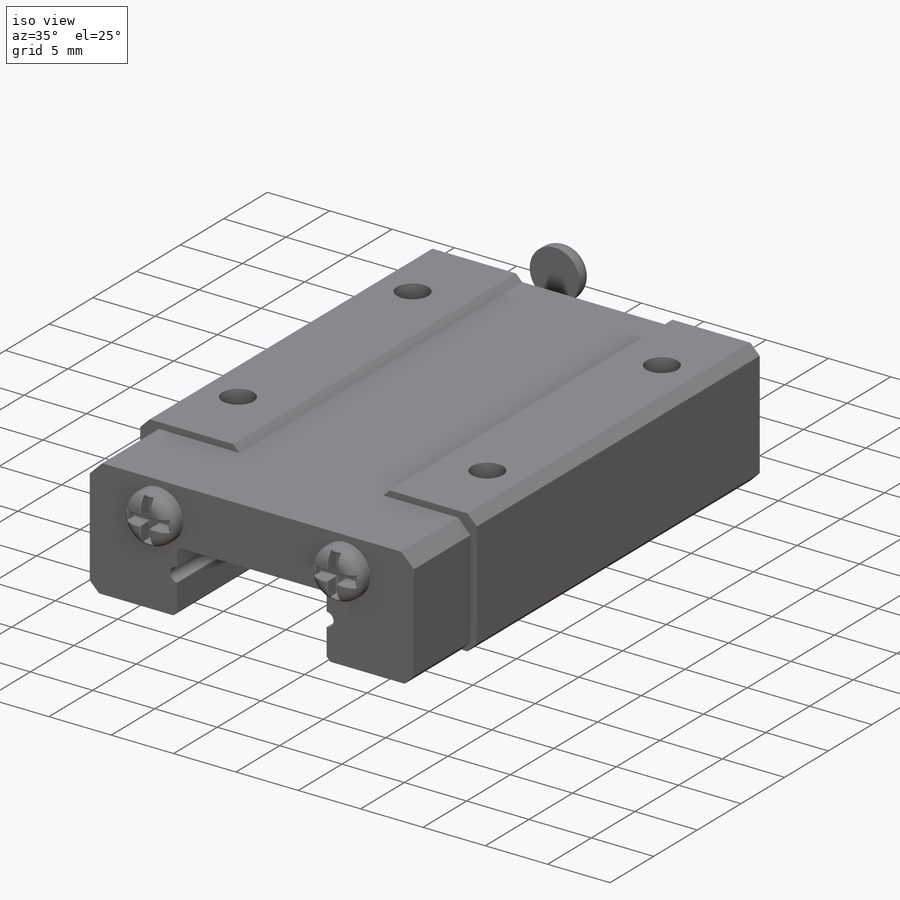
[diagram: iso view]
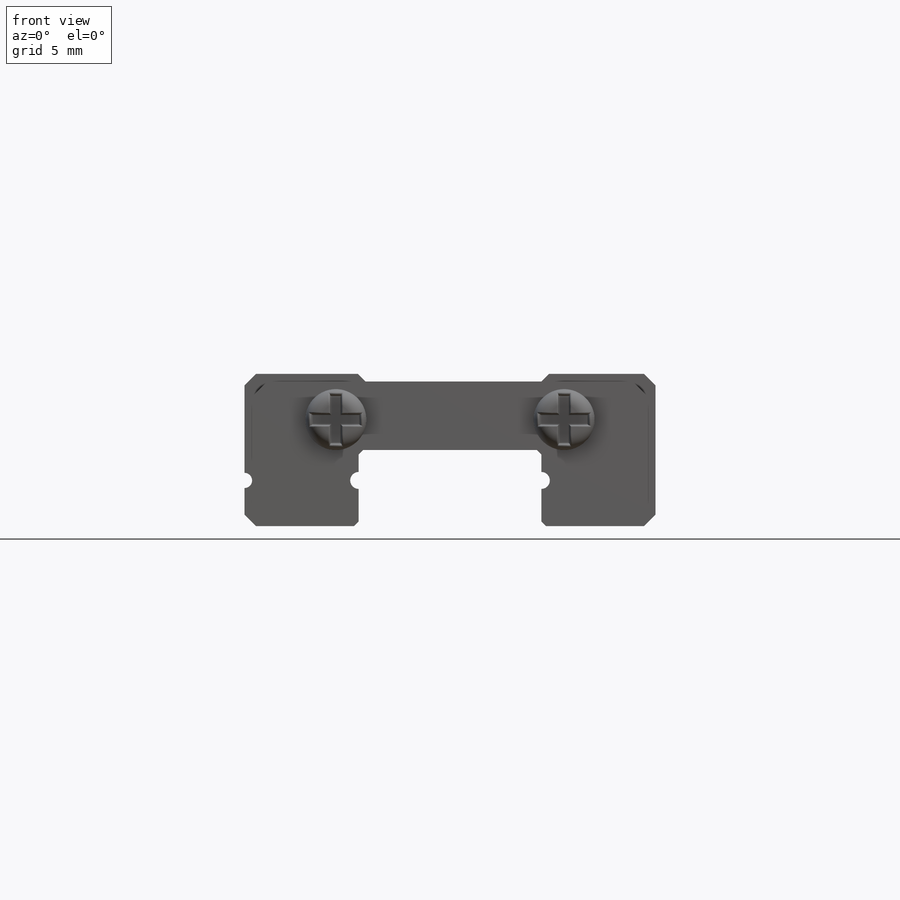
[diagram: front view]
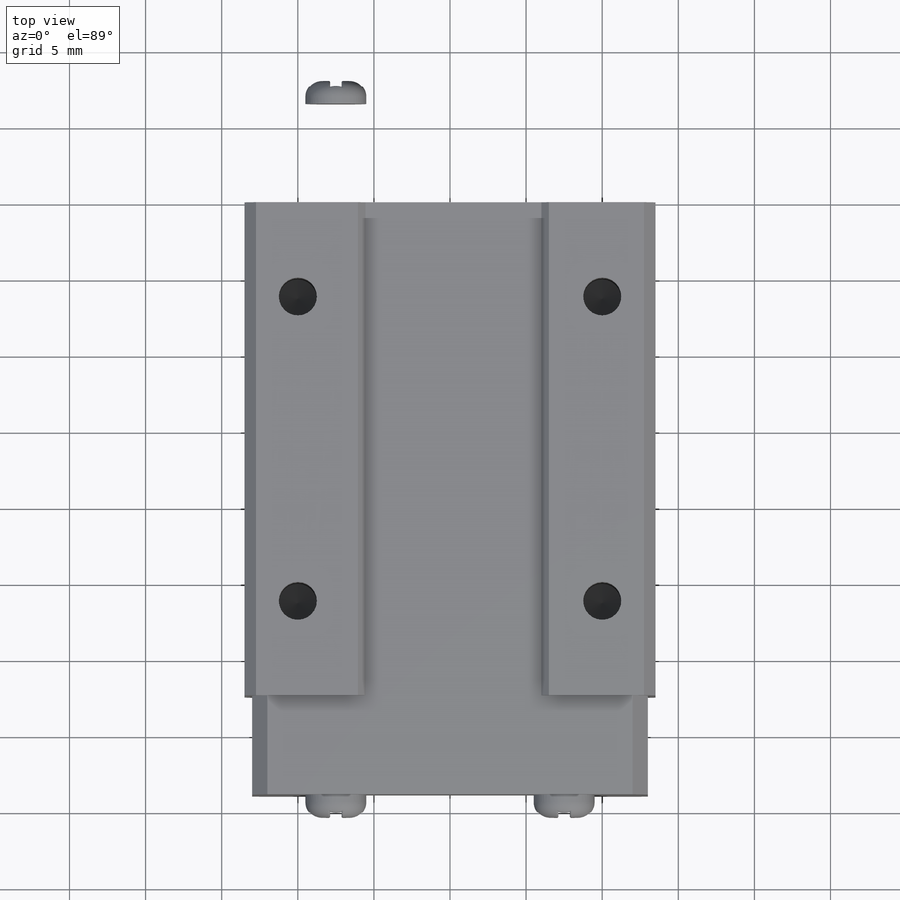
[diagram: top view]
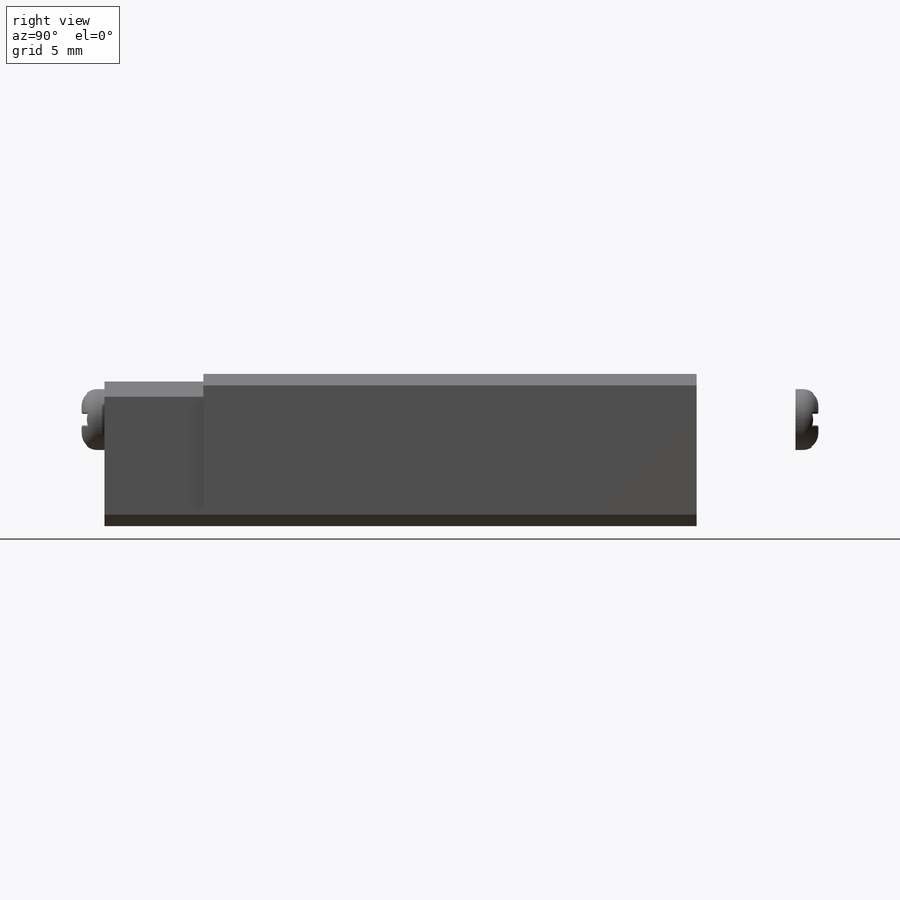
[diagram: right view]
SOLIDWORKS PART (.sldprt)
format: sldprt  version: not decoded by parser v0  size: 1,901,056 bytes
history: native  units: mm
features: sketch x15, chamfer x11, cut_extrude x7, extrude x5, mirror x5, fillet x4, thread x3, plane x2, material x1, hole x1 (+12 scaffold rows collapsed)
feature tree (66):
  scaffold x12  (default folders/planes/origin — collapsed)
  material  "AISI 304"
  sketch  "Sketch1"  dims[D1=8.0mm D2=6.0mm D3=0.5mm D4=45.0deg D5=2.0mm D6=1.0mm]
  sketch  "Sketch2"  dims[D1=10.0mm D2=27.0mm D3=3.0mm]
  extrude  "Boss-Extrude1"  Depth=32.4mm
  plane  "Plane1"
  hole  "M3x0.5 Tapped Hole1"  Diameter=2.5mm Depth=7.5mm
  sketch  "3DSketch2"  dims[c1.D1=~4.846258mm c1.D2=~4.846258mm c2.D1=10.0mm c2.D2=10.0mm c2.D3=10.0mm c2.D4=10.0mm]
  sketch  "Sketch5"  dims[hole-wizard template sketch: 50 standard entries collapsed; hole parameters above]
  thread  "Hole Thread1"  Diameter=6mm  [1 undecoded]
  thread  "Hole Thread2"  Diameter=6mm  [1 undecoded]
  thread  "Hole Thread3"  Diameter=6mm  [1 undecoded]
  mirror  "Mirror1"
  sketch  "Sketch6"  dims[D1=7.0mm D2=0.5mm]
  cut_extrude  "Cut-Extrude1"  Depth=45.6mm
  chamfer  "Chamfer1"  Distance=0.5mm Angle=45deg
  sketch  "Sketch7"  dims[D1=0.0mm]
  cut_extrude  "Cut-Extrude3"  Depth=45.6mm
  sketch  "Sketch8"  dims[D2=0.5mm D3=0.5mm D1=0.0mm]
  extrude  "Boss-Extrude2"  Depth=5mm
  sketch  "Sketch9"  dims[D1=0.0mm]
  extrude  "Boss-Extrude3"  Depth=1.5mm
  chamfer  "Chamfer3"  Distance=1mm Angle=45deg
  chamfer  "Chamfer4"  Distance=1mm Angle=45deg
  sketch  "Sketch10"  dims[D2=1.0mm D1=0.0mm]
  cut_extrude  "Cut-Extrude4"  [1 undecoded]
  chamfer  "Chamfer5"  Distance=0.75mm Angle=45deg
  chamfer  "Chamfer6"  Distance=0.75mm Angle=45deg
  chamfer  "Chamfer7"  Distance=0.75mm Angle=45deg
  mirror  "Mirror7"
  mirror  "Mirror8"
  chamfer  "Chamfer8"  Distance=0.3mm Angle=45deg
  chamfer  "Chamfer9"  Distance=0.3mm Angle=45deg
  chamfer  "Chamfer10"  Distance=0.3mm Angle=45deg
  chamfer  "Chamfer11"  Distance=0.3mm Angle=45deg
  chamfer  "Chamfer12"  Distance=0.3mm Angle=45deg
  sketch  "Sketch11"  dims[D3=4.0mm D1=15.0mm D2=7.0mm]
  extrude  "Boss-Extrude4"  Depth=1.5mm
  fillet  "Fillet1"  Radius=1mm
  fillet  "Fillet2"  Radius=1mm
  sketch  "Sketch12"  dims[D1=0.0mm]
  cut_extrude  "Cut-Extrude5"  Depth=1mm
  fillet  "Fillet3"  Radius=0.1mm
  plane  "Plane2"
  mirror  "Mirror9"
  mirror  "Mirror10"
  sketch  "Sketch13"  dims[D1=2.5mm D2=4.0mm D3=3.0]
  extrude  "Boss-Extrude5"  Depth=3.5mm
  sketch  "Sketch14"
  cut_extrude  "Cut-Extrude7"  Depth=2.5mm
  sketch  "Sketch15"  dims[D1=0.0mm]
  cut_extrude  "Cut-Extrude8"  Depth=2.5mm
  fillet  "Fillet5"  Radius=1mm
  sketch  "Sketch16"  dims[D1=2.5mm]
  cut_extrude  "Cut-Extrude9"  Depth=2.5mm
decode coverage: 44 of 51 modeling features carry decoded parameters
note: ~ marks probable driven/reference dimensions
note: 4 parameter values undecoded
note: suppression state not decoded; provenance and decode notes live in map.json
